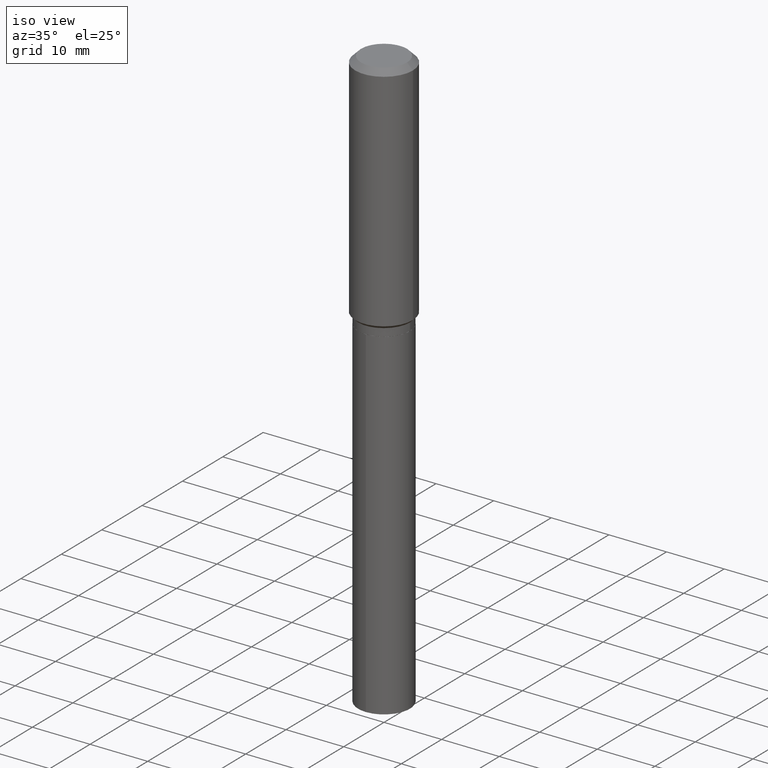
[diagram: clean part render]
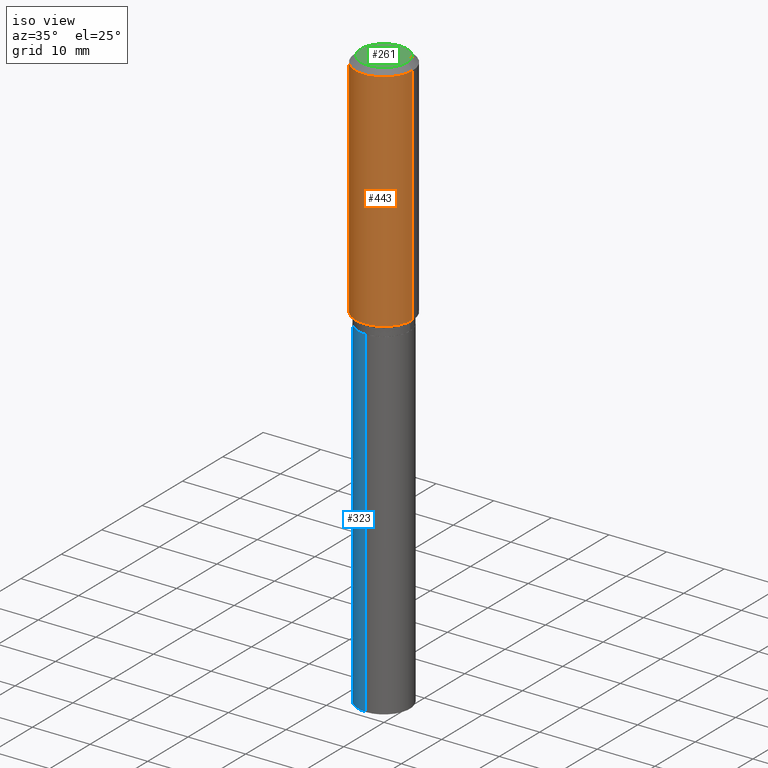
[diagram: same view with three faces highlighted in distinct colors, each labeled with its STEP entity id]
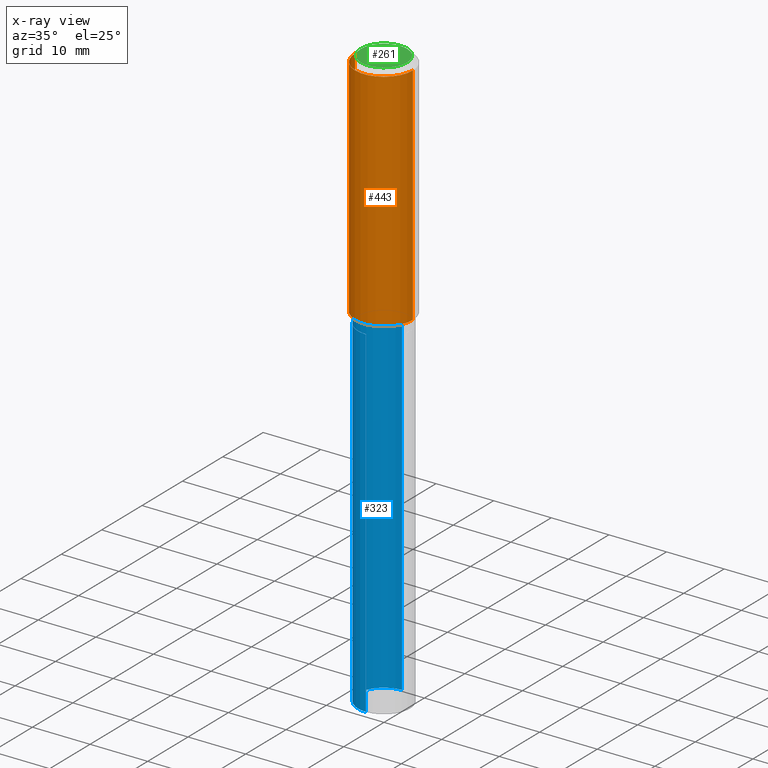
[diagram: x-ray of the same camera — body ghosted, the three highlighted faces saturated]
A machine part, iso view with three faces highlighted in distinct colors.
The next image is the same camera in x-ray (body ghosted, the three faces saturated) — at least one of them is partly hidden behind the body in this view.
Their STEP definitions:

[orange] entity #443 — the highlighted cylindrical surface (edge-blend (fillet) strip) has radius 5 mm, axis along (-0, 0, 1).
#19 = DIRECTION ( 'NONE',  ( -2.445468806185136597E-29, 3.491481338843145583E-15, 1.000000000000000000 ) ) ;
#20 = EDGE_CURVE ( 'NONE', #321, #448, #410, .T. ) ;
#24 = DIRECTION ( 'NONE',  ( 1.000000000000000000, -6.982962677686266711E-15, 4.876176775795935793E-29 ) ) ;
#38 = LINE ( 'NONE', #384, #181 ) ;
#44 = VERTEX_POINT ( 'NONE', #286 ) ;
#56 = CIRCLE ( 'NONE', #237, 0.1968500000000000250 ) ;
#70 = CYLINDRICAL_SURFACE ( 'NONE', #81, 0.1968500000000001082 ) ;
#75 = VECTOR ( 'NONE', #486, 39.37007874015748143 ) ;
#77 = VERTEX_POINT ( 'NONE', #393 ) ;
#78 = CARTESIAN_POINT ( 'NONE',  ( -0.1968500000000002192, -4.118535436296179028E-15, -1.580200000000000049 ) ) ;
#81 = AXIS2_PLACEMENT_3D ( 'NONE', #455, #19, #24 ) ;
#84 = ORIENTED_EDGE ( 'NONE', *, *, #20, .F. ) ;
#94 = ORIENTED_EDGE ( 'NONE', *, *, #241, .T. ) ;
#133 = CARTESIAN_POINT ( 'NONE',  ( 3.864329807533752585E-29, -5.517238811639938393E-15, -1.580200000000000049 ) ) ;
#165 = EDGE_CURVE ( 'NONE', #448, #77, #56, .T. ) ;
#172 = DIRECTION ( 'NONE',  ( 1.000000000000000000, -6.982962677686265922E-15, 0.000000000000000000 ) ) ;
#181 = VECTOR ( 'NONE', #226, 39.37007874015748143 ) ;
#226 = DIRECTION ( 'NONE',  ( -2.445468806185136877E-29, 3.491481338843145188E-15, 1.000000000000000000 ) ) ;
#232 = CARTESIAN_POINT ( 'NONE',  ( -0.1968500000000001082, 1.398703375343757985E-15, -9.682923725166787881E-30 ) ) ;
#237 = AXIS2_PLACEMENT_3D ( 'NONE', #296, #395, #172 ) ;
#241 = EDGE_CURVE ( 'NONE', #321, #44, #399, .T. ) ;
#256 = EDGE_LOOP ( 'NONE', ( #84, #94, #264, #472 ) ) ;
#264 = ORIENTED_EDGE ( 'NONE', *, *, #326, .T. ) ;
#286 = CARTESIAN_POINT ( 'NONE',  ( 0.1968500000000002192, -6.891835014742481579E-15, -1.580200000000000049 ) ) ;
#296 = CARTESIAN_POINT ( 'NONE',  ( 9.627810689950954155E-31, -1.374596203102556547E-16, -0.03937000000000029365 ) ) ;
#314 = FACE_OUTER_BOUND ( 'NONE', #256, .T. ) ;
#321 = VERTEX_POINT ( 'NONE', #78 ) ;
#326 = EDGE_CURVE ( 'NONE', #44, #77, #38, .T. ) ;
#384 = CARTESIAN_POINT ( 'NONE',  ( 0.1968500000000001082, -1.374596203102542397E-15, 9.598753983154305062E-30 ) ) ;
#393 = CARTESIAN_POINT ( 'NONE',  ( 0.1968500000000000250, -1.512055823412797189E-15, -0.03937000000000029365 ) ) ;
#395 = DIRECTION ( 'NONE',  ( -2.445468806185136597E-29, 3.491481338843145583E-15, 1.000000000000000000 ) ) ;
#397 = DIRECTION ( 'NONE',  ( 1.000000000000000000, -6.982962677686265922E-15, 0.000000000000000000 ) ) ;
#399 = CIRCLE ( 'NONE', #470, 0.1968500000000002192 ) ;
#410 = LINE ( 'NONE', #232, #75 ) ;
#438 = DIRECTION ( 'NONE',  ( -2.445468806185136597E-29, 3.491481338843145583E-15, 1.000000000000000000 ) ) ;
#443 = ADVANCED_FACE ( 'NONE', ( #314 ), #70, .T. ) ;
#448 = VERTEX_POINT ( 'NONE', #474 ) ;
#455 = CARTESIAN_POINT ( 'NONE',  ( 0.000000000000000000, 0.000000000000000000, 0.000000000000000000 ) ) ;
#470 = AXIS2_PLACEMENT_3D ( 'NONE', #133, #438, #397 ) ;
#472 = ORIENTED_EDGE ( 'NONE', *, *, #165, .F. ) ;
#474 = CARTESIAN_POINT ( 'NONE',  ( -0.1968500000000000250, -1.428645840631338608E-15, -0.03937000000000029365 ) ) ;
#486 = DIRECTION ( 'NONE',  ( -2.445468806185136877E-29, 3.491481338843145188E-15, 1.000000000000000000 ) ) ;

[blue] entity #323 — the highlighted cylindrical surface (edge-blend (fillet) strip) has radius 4.4996 mm, axis along (-0, 0, 1).
#5 = CARTESIAN_POINT ( 'NONE',  ( 1.258726456399115114E-15, 0.1771499999999861519, -3.985218759244814279 ) ) ;
#11 = LINE ( 'NONE', #387, #141 ) ;
#23 = CIRCLE ( 'NONE', #230, 0.1771500000000000019 ) ;
#25 = DIRECTION ( 'NONE',  ( -6.982962677686265922E-15, -1.000000000000000000, 3.084220145260246224E-15 ) ) ;
#39 = CIRCLE ( 'NONE', #105, 0.1771500000000000019 ) ;
#49 = AXIS2_PLACEMENT_3D ( 'NONE', #317, #103, #25 ) ;
#61 = VERTEX_POINT ( 'NONE', #5 ) ;
#79 = EDGE_CURVE ( 'NONE', #61, #388, #11, .T. ) ;
#103 = DIRECTION ( 'NONE',  ( -2.445490024045987495E-29, 3.491450953658761522E-15, 1.000000000000000000 ) ) ;
#105 = AXIS2_PLACEMENT_3D ( 'NONE', #477, #147, #145 ) ;
#111 = FACE_OUTER_BOUND ( 'NONE', #416, .T. ) ;
#131 = VECTOR ( 'NONE', #471, 39.37007874015748143 ) ;
#141 = VECTOR ( 'NONE', #164, 39.37007874015748143 ) ;
#145 = DIRECTION ( 'NONE',  ( -6.982962677686265922E-15, -1.000000000000000000, 3.084220145260246224E-15 ) ) ;
#146 = CARTESIAN_POINT ( 'NONE',  ( -1.237031838352081570E-15, -0.1771500000000057751, -1.653399999999999093 ) ) ;
#147 = DIRECTION ( 'NONE',  ( -2.445490024045987495E-29, 3.491450953658761522E-15, 1.000000000000000000 ) ) ;
#164 = DIRECTION ( 'NONE',  ( -2.445490024045987775E-29, 3.491450953658761522E-15, 1.000000000000000000 ) ) ;
#192 = DIRECTION ( 'NONE',  ( -2.445490024045987495E-29, 3.491450953658761522E-15, 1.000000000000000000 ) ) ;
#194 = ORIENTED_EDGE ( 'NONE', *, *, #79, .F. ) ;
#196 = ORIENTED_EDGE ( 'NONE', *, *, #479, .T. ) ;
#219 = CARTESIAN_POINT ( 'NONE',  ( -1.237031838352081570E-15, -0.1771500000000057751, -1.653399999999999093 ) ) ;
#230 = AXIS2_PLACEMENT_3D ( 'NONE', #445, #192, #378 ) ;
#242 = VERTEX_POINT ( 'NONE', #294 ) ;
#267 = ORIENTED_EDGE ( 'NONE', *, *, #333, .F. ) ;
#294 = CARTESIAN_POINT ( 'NONE',  ( -1.237031838352024575E-15, -0.1771500000000139075, -3.985218759244812947 ) ) ;
#304 = LINE ( 'NONE', #219, #131 ) ;
#317 = CARTESIAN_POINT ( 'NONE',  ( 4.043338124146503856E-29, -5.772815245643255193E-15, -1.653399999999999537 ) ) ;
#323 = ADVANCED_FACE ( 'NONE', ( #111 ), #411, .T. ) ;
#325 = ORIENTED_EDGE ( 'NONE', *, *, #462, .T. ) ;
#333 = EDGE_CURVE ( 'NONE', #388, #390, #23, .T. ) ;
#378 = DIRECTION ( 'NONE',  ( -6.982962677686265922E-15, -1.000000000000000000, 3.084220145260246224E-15 ) ) ;
#387 = CARTESIAN_POINT ( 'NONE',  ( 1.258726456399057922E-15, 0.1771499999999942565, -1.653400000000000203 ) ) ;
#388 = VERTEX_POINT ( 'NONE', #476 ) ;
#390 = VERTEX_POINT ( 'NONE', #146 ) ;
#411 = CYLINDRICAL_SURFACE ( 'NONE', #49, 0.1771500000000000019 ) ;
#416 = EDGE_LOOP ( 'NONE', ( #194, #196, #325, #267 ) ) ;
#445 = CARTESIAN_POINT ( 'NONE',  ( 4.043338124146503856E-29, -5.772815245643255193E-15, -1.653399999999999537 ) ) ;
#462 = EDGE_CURVE ( 'NONE', #242, #390, #304, .T. ) ;
#471 = DIRECTION ( 'NONE',  ( -2.445490024045987775E-29, 3.491450953658761522E-15, 1.000000000000000000 ) ) ;
#476 = CARTESIAN_POINT ( 'NONE',  ( 1.258726456399115114E-15, 0.1771499999999942565, -1.653400000000000203 ) ) ;
#477 = CARTESIAN_POINT ( 'NONE',  ( 9.745777637762988078E-29, -1.391424607636795182E-14, -3.985218759244813391 ) ) ;
#479 = EDGE_CURVE ( 'NONE', #61, #242, #39, .T. ) ;

[green] entity #261 — the highlighted planar face has unit normal (0, -0, -1).
#16 = VERTEX_POINT ( 'NONE', #193 ) ;
#27 = DIRECTION ( 'NONE',  ( -1.000000000000000000, 6.982962677686265922E-15, -4.876176775795935793E-29 ) ) ;
#54 = FACE_OUTER_BOUND ( 'NONE', #236, .T. ) ;
#74 = DIRECTION ( 'NONE',  ( -2.445468806185136597E-29, 3.491481338843145583E-15, 1.000000000000000000 ) ) ;
#96 = AXIS2_PLACEMENT_3D ( 'NONE', #374, #338, #27 ) ;
#97 = DIRECTION ( 'NONE',  ( 1.000000000000000000, -6.982962677686265922E-15, 4.876223630392693006E-29 ) ) ;
#138 = CARTESIAN_POINT ( 'NONE',  ( -9.427742298522567634E-47, 1.346031739168368355E-32, 3.855188123715870730E-18 ) ) ;
#143 = CIRCLE ( 'NONE', #392, 0.1574800000000000089 ) ;
#162 = AXIS2_PLACEMENT_3D ( 'NONE', #414, #74, #442 ) ;
#193 = CARTESIAN_POINT ( 'NONE',  ( -0.1574800000000000089, 1.168406772637159618E-15, 3.855188123707939751E-18 ) ) ;
#209 = PLANE ( 'NONE',  #96 ) ;
#236 = EDGE_LOOP ( 'NONE', ( #239, #432 ) ) ;
#239 = ORIENTED_EDGE ( 'NONE', *, *, #246, .T. ) ;
#246 = EDGE_CURVE ( 'NONE', #16, #482, #143, .T. ) ;
#261 = ADVANCED_FACE ( 'NONE', ( #54 ), #209, .F. ) ;
#288 = EDGE_CURVE ( 'NONE', #482, #16, #381, .T. ) ;
#308 = CARTESIAN_POINT ( 'NONE',  ( 0.1574800000000000089, -1.284169937930321189E-15, 3.855188123724205385E-18 ) ) ;
#338 = DIRECTION ( 'NONE',  ( 2.438088387897960049E-29, -3.491481338843145188E-15, -1.000000000000000000 ) ) ;
#374 = CARTESIAN_POINT ( 'NONE',  ( -4.713871149261283817E-47, 6.730158695841841775E-33, 1.927594061857935365E-18 ) ) ;
#381 = CIRCLE ( 'NONE', #162, 0.1574800000000000089 ) ;
#392 = AXIS2_PLACEMENT_3D ( 'NONE', #138, #434, #97 ) ;
#414 = CARTESIAN_POINT ( 'NONE',  ( -9.427742298522567634E-47, 1.346031739168368355E-32, 3.855188123715870730E-18 ) ) ;
#432 = ORIENTED_EDGE ( 'NONE', *, *, #288, .T. ) ;
#434 = DIRECTION ( 'NONE',  ( -2.445468806185136597E-29, 3.491481338843145583E-15, 1.000000000000000000 ) ) ;
#442 = DIRECTION ( 'NONE',  ( 1.000000000000000000, -6.982962677686265922E-15, 4.876223630392693006E-29 ) ) ;
#482 = VERTEX_POINT ( 'NONE', #308 ) ;